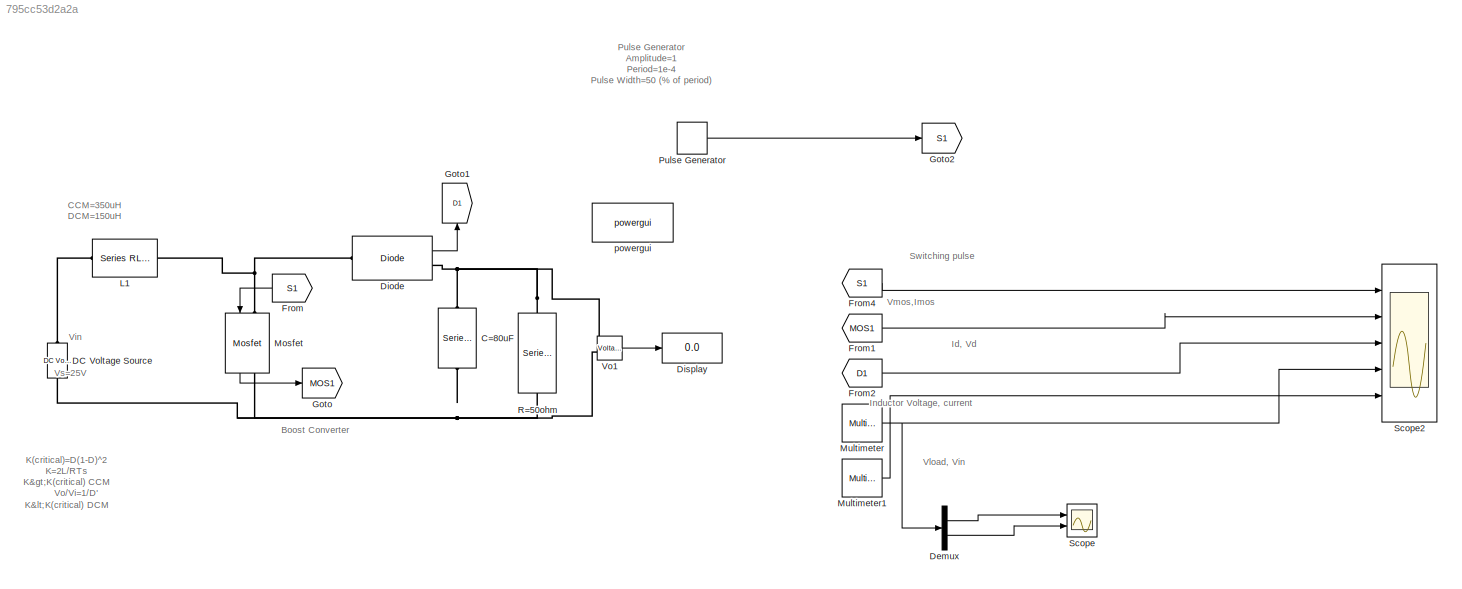
MODEL slx_795cc53d2a2a
KIND model
CONFIG AbsTol = auto
CONFIG EnableMultiTasking = off
CONFIG FixedStep = auto
CONFIG MaxStep = auto
CONFIG MinStep = auto
CONFIG RelTol = 1e-3
CONFIG SampleTimeConstraint = Unconstrained
CONFIG SolverName = ode45
CONFIG StartTime = 0.0
CONFIG StopTime = 0.05
BLOCK [Reference] C=80uF  REF=spsSeriesRLCBranchLib/Series RLC Branch
  NameLocation = left
  Ports = [0, 0, 0, 0, 0, 1, 1]
  SourceBlock = spsSeriesRLCBranchLib/Series RLC Branch
  SourceProductBaseCode = PS
  SourceType = Series RLC Branch
BLOCK [Reference] DC Voltage Source  REF=spsDCVoltageSourceLib/DC Voltage Source
  Ports = [0, 0, 0, 0, 0, 1, 1]
  SourceBlock = spsDCVoltageSourceLib/DC Voltage Source
  SourceProductBaseCode = PS
  SourceType = DC Voltage Source
BLOCK [Demux] Demux
  Outputs = 2
  Ports = [1, 2]
BLOCK [Reference] Diode  REF=spsDiodeLib/Diode
  Ports = [0, 1, 0, 0, 0, 1, 1]
  SourceBlock = spsDiodeLib/Diode
  SourceProductBaseCode = PS
  SourceType = Diode
BLOCK [Display] Display
  Decimation = 1
  Ports = [1]
BLOCK [From] From
  GotoTag = S1
  NameLocation = top
BLOCK [From] From1
  GotoTag = MOS1
BLOCK [From] From2
  GotoTag = D1
BLOCK [From] From4
  GotoTag = S1
BLOCK [Goto] Goto
  GotoTag = MOS1
BLOCK [Goto] Goto1
  GotoTag = D1
  NameLocation = right
BLOCK [Goto] Goto2
  GotoTag = S1
BLOCK [Reference] L1  REF=spsSeriesRLCBranchLib/Series RLC Branch
  Ports = [0, 0, 0, 0, 0, 1, 1]
  SourceBlock = spsSeriesRLCBranchLib/Series RLC Branch
  SourceProductBaseCode = PS
  SourceType = Series RLC Branch
BLOCK [Reference] Mosfet  REF=spsMosfetLib/Mosfet
  NameLocation = left
  Ports = [1, 1, 0, 0, 0, 1, 1]
  SourceBlock = spsMosfetLib/Mosfet
  SourceProductBaseCode = PS
  SourceType = Mosfet
BLOCK [Reference] Multimeter  REF=spsMultimeterLib/Multimeter
  Ports = [0, 1]
  SourceBlock = spsMultimeterLib/Multimeter
  SourceProductBaseCode = PS
  SourceType = MultimeterPSB
BLOCK [Reference] Multimeter1  REF=spsMultimeterLib/Multimeter
  Ports = [0, 1]
  SourceBlock = spsMultimeterLib/Multimeter
  SourceProductBaseCode = PS
  SourceType = MultimeterPSB
BLOCK [DiscretePulseGenerator] Pulse Generator
  Period = 1e-4
  Ports = [0, 1]
  PulseType = Time based
  PulseWidth = 50
BLOCK [Reference] R=50ohm  REF=spsSeriesRLCBranchLib/Series RLC Branch
  NameLocation = left
  Ports = [0, 0, 0, 0, 0, 1, 1]
  SourceBlock = spsSeriesRLCBranchLib/Series RLC Branch
  SourceProductBaseCode = PS
  SourceType = Series RLC Branch
BLOCK [Scope] Scope
  Floating = off
  NumInputPorts = 2
  Ports = [2]
  ScopeSpecificationString = Simulink.scopes.TimeScopeBlockCfg('CurrentConfiguration', extmgr.ConfigurationSet(extmgr.Configuration('Core','General UI',true),extmgr.Configuration('Core','Source UI',true),extmgr.Configuration('Sources','WiredSimulink',true,'DataLoggingVariableName','ScopeData1'),extmgr.Configuration('Visuals','Time Domain',true,'SerializedDisplays',{struct('MinYLimReal','-76.24784','MaxYLimReal','36.24074','YL...<+2042ch>
BLOCK [Scope] Scope2
  Floating = off
  NumInputPorts = 5
  Ports = [5]
  ScopeSpecificationString = Simulink.scopes.TimeScopeBlockCfg('CurrentConfiguration', extmgr.ConfigurationSet(extmgr.Configuration('Core','General UI',true),extmgr.Configuration('Core','Source UI',true),extmgr.Configuration('Sources','WiredSimulink',true,'DataLoggingVariableName','ScopeData2'),extmgr.Configuration('Visuals','Time Domain',true,'SerializedDisplays',{struct('MinYLimReal','1.49166','MaxYLimReal','7.01938','YLabe...<+3621ch>
BLOCK [Reference] Vo1  REF=spsVoltageMeasurementLib/Voltage Measurement
  Ports = [0, 1, 0, 0, 0, 2]
  SourceBlock = spsVoltageMeasurementLib/Voltage Measurement
  SourceProductBaseCode = PS
  SourceType = Voltage Measurement
  UserDataPersistent = on
BLOCK [Reference] powergui  REF=spspowerguiLib/powergui
  Ports = []
  Priority = 1
  SourceBlock = spspowerguiLib/powergui
  SourceProductBaseCode = PS
  SourceType = PSB option menu block
ANNOTATION (root): Inductor Voltage, current
ANNOTATION (root): Boost Converter
ANNOTATION (root): K(critical)=D(1-D)^2 K=2L/RTs K>K(critical) CCM K<K(critical) DCM
ANNOTATION (root): Pulse Generator Amplitude=1 Period=1e-4 Pulse Width=50 (% of period)
ANNOTATION (root): CCM=350uH DCM=150uH
ANNOTATION (root): Id, Vd
ANNOTATION (root): Switching pulse
ANNOTATION (root): Vin
ANNOTATION (root): Vload, Vin
ANNOTATION (root): Vmos,Imos
ANNOTATION (root): Vo/Vi=1/D'
ANNOTATION (root): Vs=25V
LINE Demux:1 -> Scope:1
LINE Demux:2 -> Scope:2
LINE Diode:1 -> Goto1:1
LINE From1:1 -> Scope2:2
LINE From2:1 -> Scope2:3
LINE From4:1 -> Scope2:1
LINE From:1 -> Mosfet:1
LINE Mosfet:1 -> Goto:1
LINE Multimeter1:1 -> Scope2:5
NET Multimeter:1 -> Demux:1, Scope2:4
LINE Pulse Generator:1 -> Goto2:1
LINE Vo1:1 -> Display:1
PNET net1: C=80uF:LConn1 -- Diode:RConn1 -- R=50ohm:LConn1 -- Vo1:LConn1
PNET net2: C=80uF:RConn1 -- DC Voltage Source:LConn1 -- Mosfet:RConn1 -- R=50ohm:RConn1 -- Vo1:LConn2
PLINE DC Voltage Source:RConn1 -- L1:LConn1
PNET net3: Diode:LConn1 -- L1:RConn1 -- Mosfet:LConn1
note: NET lines group one-source signal fan-out (src -> all destinations, sorted); 1:1 wires keep LINE; PNET lines group multi-terminal physical nets as a canonical sorted terminal list (undirected conserving connections); 2-terminal nets keep the pairwise PLINE form
